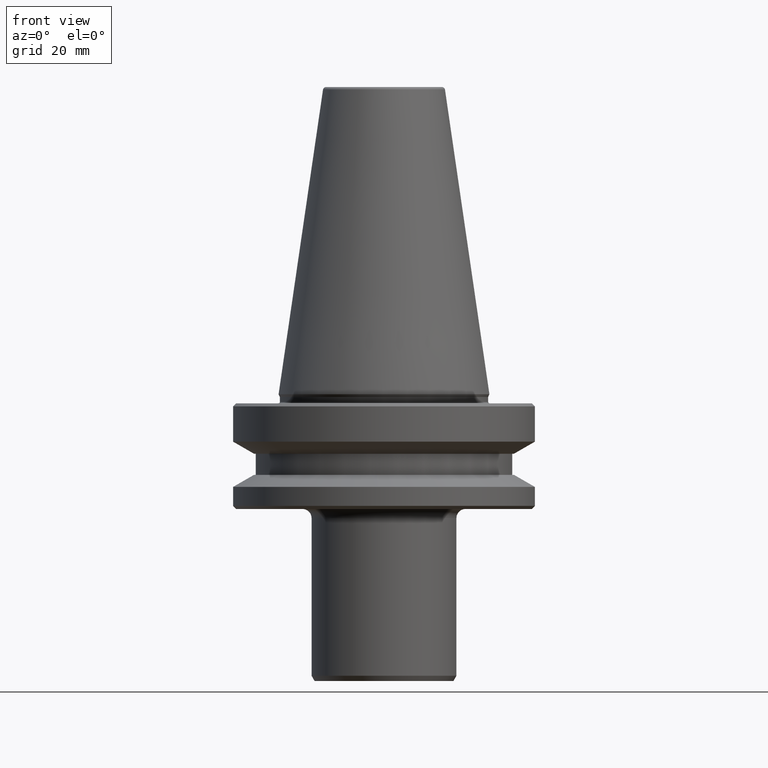
[diagram: clean part render]
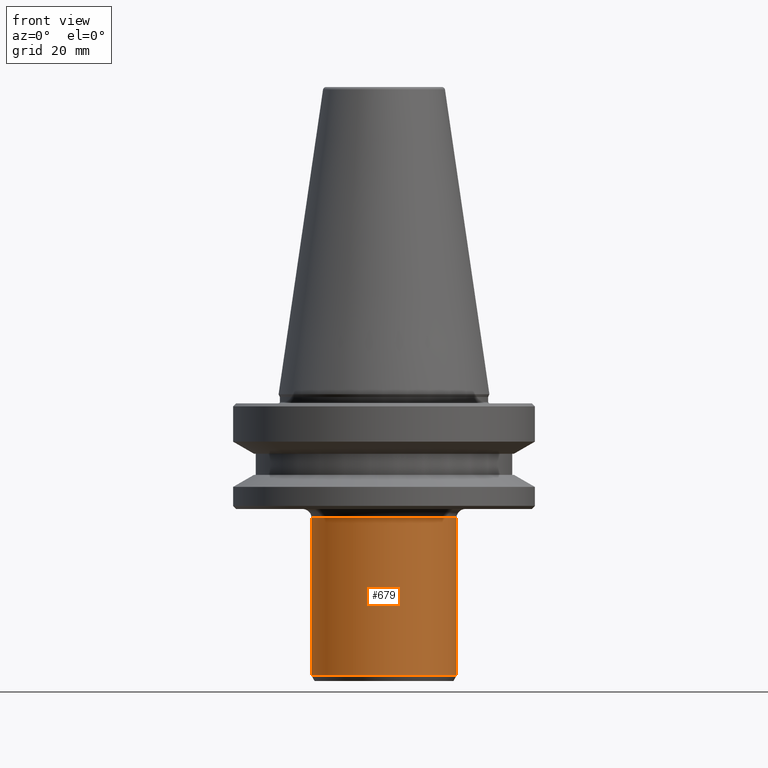
[diagram: same view with one face highlighted and labeled with its STEP entity id]
A machine part, front view. The second image highlights one B-rep face of the part: STEP entity #679.
In plain terms, the highlighted cylindrical surface (partial cylindrical patch) has radius 24 mm, axis along (-0, -0, 1).
Its self-contained STEP definition (entity closure, byte-faithful):
#30 = EDGE_CURVE ( 'NONE', #776, #101, #379, .T. ) ;
#34 = ORIENTED_EDGE ( 'NONE', *, *, #849, .F. ) ;
#77 = CARTESIAN_POINT ( 'NONE',  ( 24.00000000000000000, 0.0000000000000000000, -40.99999999994118100 ) ) ;
#79 = DIRECTION ( 'NONE',  ( 1.000000000000000000, 0.0000000000000000000, 0.0000000000000000000 ) ) ;
#101 = VERTEX_POINT ( 'NONE', #402 ) ;
#106 = CARTESIAN_POINT ( 'NONE',  ( 24.00000000000000000, 0.0000000000000000000, 108.3108805077434200 ) ) ;
#136 = VECTOR ( 'NONE', #952, 1000.000000000000000 ) ;
#143 = DIRECTION ( 'NONE',  ( -0.0000000000000000000, -0.0000000000000000000, 1.000000000000000000 ) ) ;
#150 = ORIENTED_EDGE ( 'NONE', *, *, #713, .T. ) ;
#230 = CIRCLE ( 'NONE', #518, 24.00000000000000000 ) ;
#244 = CARTESIAN_POINT ( 'NONE',  ( 24.00000000000000000, 0.0000000000000000000, -93.26794919243195600 ) ) ;
#256 = CYLINDRICAL_SURFACE ( 'NONE', #322, 24.00000000000000000 ) ;
#263 = ORIENTED_EDGE ( 'NONE', *, *, #427, .T. ) ;
#302 = DIRECTION ( 'NONE',  ( -0.0000000000000000000, -0.0000000000000000000, 1.000000000000000000 ) ) ;
#322 = AXIS2_PLACEMENT_3D ( 'NONE', #917, #143, #79 ) ;
#365 = FACE_OUTER_BOUND ( 'NONE', #644, .T. ) ;
#379 = LINE ( 'NONE', #665, #963 ) ;
#398 = VERTEX_POINT ( 'NONE', #244 ) ;
#402 = CARTESIAN_POINT ( 'NONE',  ( -24.00000000000000000, 2.939152317953647900E-015, -40.99999999994118100 ) ) ;
#424 = ORIENTED_EDGE ( 'NONE', *, *, #30, .F. ) ;
#427 = EDGE_CURVE ( 'NONE', #398, #965, #761, .T. ) ;
#481 = AXIS2_PLACEMENT_3D ( 'NONE', #779, #630, #687 ) ;
#518 = AXIS2_PLACEMENT_3D ( 'NONE', #705, #302, #762 ) ;
#599 = CARTESIAN_POINT ( 'NONE',  ( -24.00000000000000000, 2.939152317953647900E-015, -93.26794919243195600 ) ) ;
#630 = DIRECTION ( 'NONE',  ( -0.0000000000000000000, -0.0000000000000000000, 1.000000000000000000 ) ) ;
#644 = EDGE_LOOP ( 'NONE', ( #424, #150, #263, #34 ) ) ;
#665 = CARTESIAN_POINT ( 'NONE',  ( -24.00000000000000000, 2.939152317953647900E-015, 108.3108805077434200 ) ) ;
#673 = CIRCLE ( 'NONE', #481, 24.00000000000000000 ) ;
#677 = DIRECTION ( 'NONE',  ( -0.0000000000000000000, -0.0000000000000000000, 1.000000000000000000 ) ) ;
#679 = ADVANCED_FACE ( 'NONE', ( #365 ), #256, .T. ) ;
#687 = DIRECTION ( 'NONE',  ( 1.000000000000000000, 0.0000000000000000000, 0.0000000000000000000 ) ) ;
#705 = CARTESIAN_POINT ( 'NONE',  ( 0.0000000000000000000, 0.0000000000000000000, -40.99999999994118100 ) ) ;
#713 = EDGE_CURVE ( 'NONE', #776, #398, #673, .T. ) ;
#761 = LINE ( 'NONE', #106, #136 ) ;
#762 = DIRECTION ( 'NONE',  ( 1.000000000000000000, 0.0000000000000000000, 0.0000000000000000000 ) ) ;
#776 = VERTEX_POINT ( 'NONE', #599 ) ;
#779 = CARTESIAN_POINT ( 'NONE',  ( 0.0000000000000000000, 0.0000000000000000000, -93.26794919243195600 ) ) ;
#849 = EDGE_CURVE ( 'NONE', #101, #965, #230, .T. ) ;
#917 = CARTESIAN_POINT ( 'NONE',  ( 0.0000000000000000000, 0.0000000000000000000, 108.3108805077434200 ) ) ;
#952 = DIRECTION ( 'NONE',  ( -0.0000000000000000000, -0.0000000000000000000, 1.000000000000000000 ) ) ;
#963 = VECTOR ( 'NONE', #677, 1000.000000000000000 ) ;
#965 = VERTEX_POINT ( 'NONE', #77 ) ;